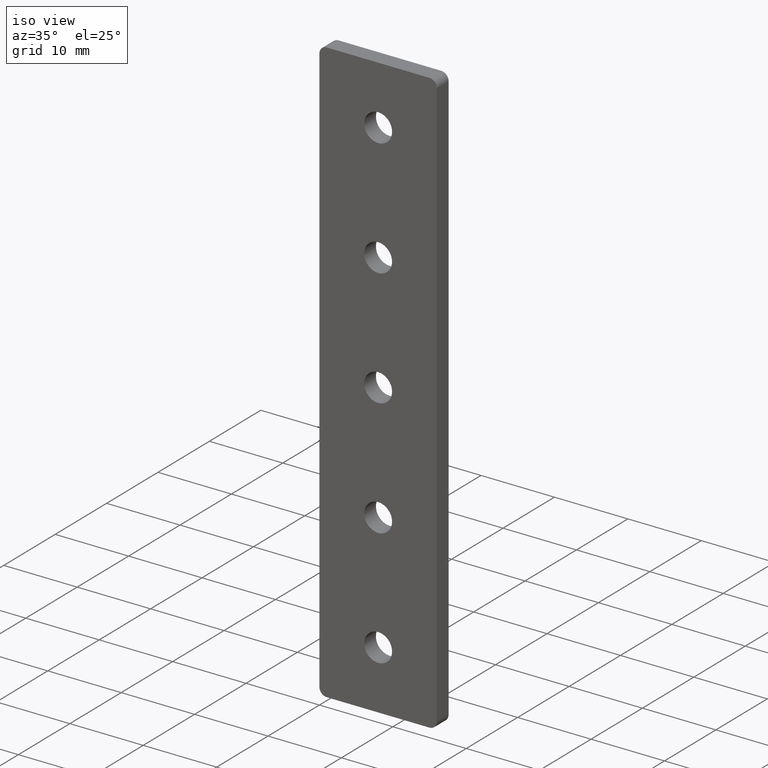
[diagram: clean part render]
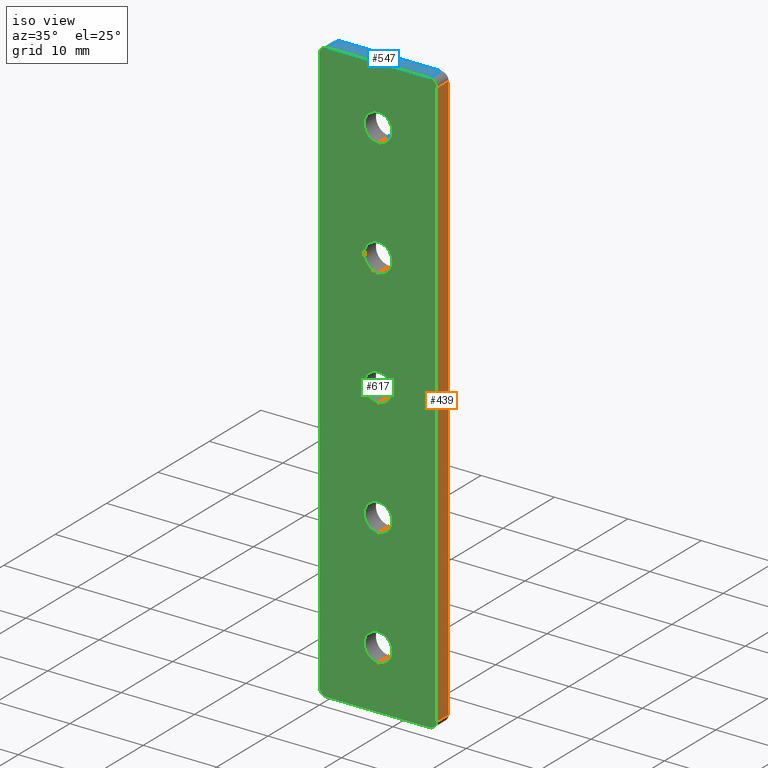
[diagram: same view with three faces highlighted in distinct colors, each labeled with its STEP entity id]
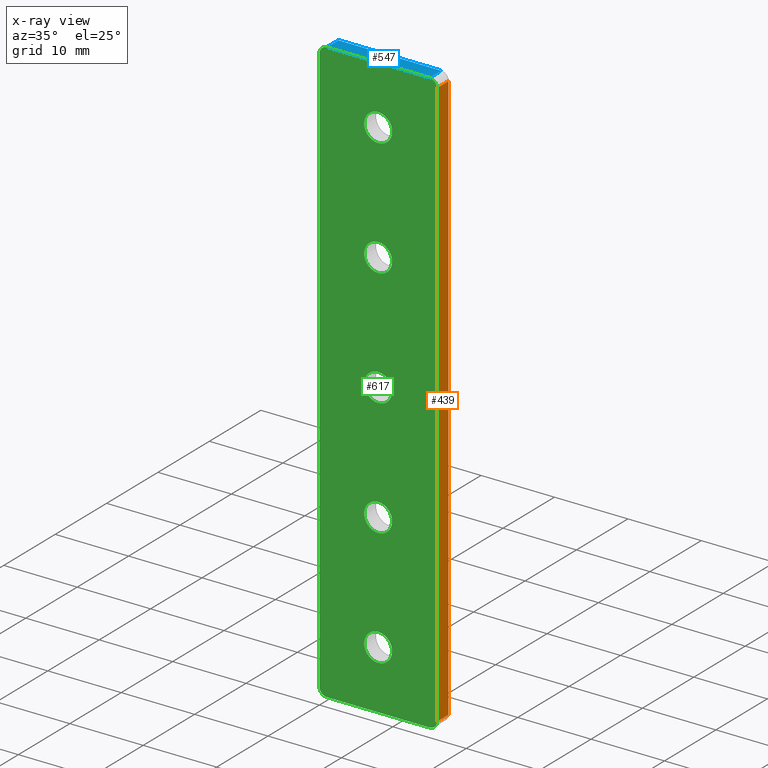
[diagram: x-ray of the same camera — body ghosted, the three highlighted faces saturated]
A machine part, iso view with three faces highlighted in distinct colors.
The next image is the same camera in x-ray (body ghosted, the three faces saturated) — at least one of them is partly hidden behind the body in this view.
Their STEP definitions:

[orange] entity #439 — the highlighted planar face has unit normal (1, 0, 0).
#19 = EDGE_CURVE ( 'NONE', #133, #152, #449, .T. ) ;
#21 = DIRECTION ( 'NONE',  ( 0.0000000000000000000, 0.0000000000000000000, -1.000000000000000000 ) ) ;
#64 = DIRECTION ( 'NONE',  ( 0.0000000000000000000, 0.0000000000000000000, 1.000000000000000000 ) ) ;
#99 = CARTESIAN_POINT ( 'NONE',  ( 16.00000000000000000, 0.0000000000000000000, -79.00000000000000000 ) ) ;
#112 = ORIENTED_EDGE ( 'NONE', *, *, #231, .T. ) ;
#126 = LINE ( 'NONE', #623, #372 ) ;
#133 = VERTEX_POINT ( 'NONE', #99 ) ;
#140 = CARTESIAN_POINT ( 'NONE',  ( 16.00000000000000000, 2.286000000000000000, -79.00000000000000000 ) ) ;
#142 = VECTOR ( 'NONE', #513, 1000.000000000000000 ) ;
#152 = VERTEX_POINT ( 'NONE', #140 ) ;
#181 = CARTESIAN_POINT ( 'NONE',  ( 16.00000000000000000, 2.286000000000000000, 0.0000000000000000000 ) ) ;
#182 = CARTESIAN_POINT ( 'NONE',  ( 16.00000000000000000, 2.286000000000000000, 0.0000000000000000000 ) ) ;
#231 = EDGE_CURVE ( 'NONE', #152, #245, #601, .T. ) ;
#245 = VERTEX_POINT ( 'NONE', #549 ) ;
#272 = VERTEX_POINT ( 'NONE', #382 ) ;
#307 = EDGE_CURVE ( 'NONE', #245, #272, #126, .T. ) ;
#310 = VECTOR ( 'NONE', #690, 1000.000000000000000 ) ;
#367 = FACE_OUTER_BOUND ( 'NONE', #693, .T. ) ;
#372 = VECTOR ( 'NONE', #660, 1000.000000000000000 ) ;
#382 = CARTESIAN_POINT ( 'NONE',  ( 16.00000000000000000, 0.0000000000000000000, -1.000000000000000000 ) ) ;
#412 = VECTOR ( 'NONE', #64, 1000.000000000000000 ) ;
#439 = ADVANCED_FACE ( 'NONE', ( #367 ), #525, .T. ) ;
#449 = LINE ( 'NONE', #676, #310 ) ;
#476 = LINE ( 'NONE', #659, #412 ) ;
#486 = ORIENTED_EDGE ( 'NONE', *, *, #19, .T. ) ;
#513 = DIRECTION ( 'NONE',  ( 0.0000000000000000000, 0.0000000000000000000, 1.000000000000000000 ) ) ;
#525 = PLANE ( 'NONE',  #705 ) ;
#532 = DIRECTION ( 'NONE',  ( 1.000000000000000000, 0.0000000000000000000, 0.0000000000000000000 ) ) ;
#535 = ORIENTED_EDGE ( 'NONE', *, *, #593, .F. ) ;
#549 = CARTESIAN_POINT ( 'NONE',  ( 16.00000000000000000, 2.286000000000000000, -1.000000000000000000 ) ) ;
#593 = EDGE_CURVE ( 'NONE', #133, #272, #476, .T. ) ;
#601 = LINE ( 'NONE', #181, #142 ) ;
#620 = ORIENTED_EDGE ( 'NONE', *, *, #307, .T. ) ;
#623 = CARTESIAN_POINT ( 'NONE',  ( 16.00000000000000000, 2.286000000000000000, -1.000000000000000000 ) ) ;
#659 = CARTESIAN_POINT ( 'NONE',  ( 16.00000000000000000, 0.0000000000000000000, -0.0000000000000000000 ) ) ;
#660 = DIRECTION ( 'NONE',  ( 0.0000000000000000000, -1.000000000000000000, -0.0000000000000000000 ) ) ;
#676 = CARTESIAN_POINT ( 'NONE',  ( 16.00000000000000000, 2.286000000000000000, -79.00000000000000000 ) ) ;
#690 = DIRECTION ( 'NONE',  ( -0.0000000000000000000, 1.000000000000000000, -0.0000000000000000000 ) ) ;
#693 = EDGE_LOOP ( 'NONE', ( #112, #620, #535, #486 ) ) ;
#705 = AXIS2_PLACEMENT_3D ( 'NONE', #182, #532, #21 ) ;

[blue] entity #547 — the highlighted planar face has unit normal (0, -0, 1).
#41 = VECTOR ( 'NONE', #177, 1000.000000000000000 ) ;
#55 = LINE ( 'NONE', #85, #309 ) ;
#60 = CARTESIAN_POINT ( 'NONE',  ( 0.0000000000000000000, 2.286000000000000000, 0.0000000000000000000 ) ) ;
#66 = AXIS2_PLACEMENT_3D ( 'NONE', #60, #268, #436 ) ;
#85 = CARTESIAN_POINT ( 'NONE',  ( 15.00000000000000000, 2.286000000000000000, 0.0000000000000000000 ) ) ;
#105 = CARTESIAN_POINT ( 'NONE',  ( 1.000000000000000000, 0.0000000000000000000, -0.0000000000000000000 ) ) ;
#108 = DIRECTION ( 'NONE',  ( -0.0000000000000000000, 1.000000000000000000, 0.0000000000000000000 ) ) ;
#117 = PLANE ( 'NONE',  #66 ) ;
#125 = VECTOR ( 'NONE', #229, 1000.000000000000000 ) ;
#165 = CARTESIAN_POINT ( 'NONE',  ( 0.0000000000000000000, 0.0000000000000000000, -0.0000000000000000000 ) ) ;
#174 = FACE_OUTER_BOUND ( 'NONE', #343, .T. ) ;
#177 = DIRECTION ( 'NONE',  ( -1.000000000000000000, 0.0000000000000000000, 0.0000000000000000000 ) ) ;
#196 = EDGE_CURVE ( 'NONE', #687, #711, #234, .T. ) ;
#210 = CARTESIAN_POINT ( 'NONE',  ( 15.00000000000000000, 0.0000000000000000000, -0.0000000000000000000 ) ) ;
#227 = CARTESIAN_POINT ( 'NONE',  ( 0.0000000000000000000, 2.286000000000000000, 0.0000000000000000000 ) ) ;
#229 = DIRECTION ( 'NONE',  ( 0.0000000000000000000, -1.000000000000000000, 0.0000000000000000000 ) ) ;
#234 = LINE ( 'NONE', #227, #41 ) ;
#241 = VECTOR ( 'NONE', #671, 1000.000000000000000 ) ;
#253 = LINE ( 'NONE', #165, #241 ) ;
#268 = DIRECTION ( 'NONE',  ( 0.0000000000000000000, -0.0000000000000000000, 1.000000000000000000 ) ) ;
#275 = EDGE_CURVE ( 'NONE', #333, #540, #253, .T. ) ;
#309 = VECTOR ( 'NONE', #108, 1000.000000000000000 ) ;
#326 = ORIENTED_EDGE ( 'NONE', *, *, #661, .T. ) ;
#333 = VERTEX_POINT ( 'NONE', #210 ) ;
#343 = EDGE_LOOP ( 'NONE', ( #657, #498, #577, #326 ) ) ;
#384 = LINE ( 'NONE', #397, #125 ) ;
#397 = CARTESIAN_POINT ( 'NONE',  ( 1.000000000000000000, 2.286000000000000000, 0.0000000000000000000 ) ) ;
#436 = DIRECTION ( 'NONE',  ( 1.000000000000000000, 0.0000000000000000000, -0.0000000000000000000 ) ) ;
#498 = ORIENTED_EDGE ( 'NONE', *, *, #531, .T. ) ;
#531 = EDGE_CURVE ( 'NONE', #333, #687, #55, .T. ) ;
#540 = VERTEX_POINT ( 'NONE', #105 ) ;
#547 = ADVANCED_FACE ( 'NONE', ( #174 ), #117, .T. ) ;
#577 = ORIENTED_EDGE ( 'NONE', *, *, #196, .T. ) ;
#608 = CARTESIAN_POINT ( 'NONE',  ( 15.00000000000000000, 2.286000000000000000, 0.0000000000000000000 ) ) ;
#657 = ORIENTED_EDGE ( 'NONE', *, *, #275, .F. ) ;
#661 = EDGE_CURVE ( 'NONE', #711, #540, #384, .T. ) ;
#671 = DIRECTION ( 'NONE',  ( -1.000000000000000000, 0.0000000000000000000, 0.0000000000000000000 ) ) ;
#680 = CARTESIAN_POINT ( 'NONE',  ( 1.000000000000000000, 2.286000000000000000, 0.0000000000000000000 ) ) ;
#687 = VERTEX_POINT ( 'NONE', #608 ) ;
#711 = VERTEX_POINT ( 'NONE', #680 ) ;

[green] entity #617 — the highlighted planar face has unit normal (0, 1, -0).
#14 = CARTESIAN_POINT ( 'NONE',  ( 8.000000000000000000, 0.0000000000000000000, -55.99999999999999300 ) ) ;
#18 = ORIENTED_EDGE ( 'NONE', *, *, #430, .T. ) ;
#20 = DIRECTION ( 'NONE',  ( 0.0000000000000000000, 0.0000000000000000000, 1.000000000000000000 ) ) ;
#22 = DIRECTION ( 'NONE',  ( 0.0000000000000000000, 0.0000000000000000000, 1.000000000000000000 ) ) ;
#29 = DIRECTION ( 'NONE',  ( 0.0000000000000000000, 1.000000000000000000, -0.0000000000000000000 ) ) ;
#32 = DIRECTION ( 'NONE',  ( 0.0000000000000000000, 1.000000000000000000, -0.0000000000000000000 ) ) ;
#42 = VERTEX_POINT ( 'NONE', #662 ) ;
#45 = CARTESIAN_POINT ( 'NONE',  ( 8.000000000000000000, 0.0000000000000000000, -72.00000000000001400 ) ) ;
#49 = FACE_BOUND ( 'NONE', #249, .T. ) ;
#51 = ORIENTED_EDGE ( 'NONE', *, *, #236, .T. ) ;
#53 = DIRECTION ( 'NONE',  ( -0.0000000000000000000, -1.000000000000000000, 0.0000000000000000000 ) ) ;
#58 = VERTEX_POINT ( 'NONE', #179 ) ;
#61 = CARTESIAN_POINT ( 'NONE',  ( 0.0000000000000000000, 0.0000000000000000000, 0.0000000000000000000 ) ) ;
#64 = DIRECTION ( 'NONE',  ( 0.0000000000000000000, 0.0000000000000000000, 1.000000000000000000 ) ) ;
#70 = DIRECTION ( 'NONE',  ( 0.0000000000000000000, 1.000000000000000000, -0.0000000000000000000 ) ) ;
#75 = CIRCLE ( 'NONE', #169, 1.905000000000000500 ) ;
#77 = DIRECTION ( 'NONE',  ( 0.0000000000000000000, 0.0000000000000000000, 1.000000000000000000 ) ) ;
#80 = CIRCLE ( 'NONE', #478, 1.000000000000000000 ) ;
#82 = EDGE_LOOP ( 'NONE', ( #248, #51 ) ) ;
#93 = CARTESIAN_POINT ( 'NONE',  ( 8.000000000000001800, 0.0000000000000000000, -9.904999999999997600 ) ) ;
#98 = EDGE_CURVE ( 'NONE', #255, #688, #75, .T. ) ;
#99 = CARTESIAN_POINT ( 'NONE',  ( 16.00000000000000000, 0.0000000000000000000, -79.00000000000000000 ) ) ;
#101 = CARTESIAN_POINT ( 'NONE',  ( 8.000000000000000000, 0.0000000000000000000, -70.09499999999999900 ) ) ;
#105 = CARTESIAN_POINT ( 'NONE',  ( 1.000000000000000000, 0.0000000000000000000, -0.0000000000000000000 ) ) ;
#119 = ORIENTED_EDGE ( 'NONE', *, *, #537, .T. ) ;
#122 = VERTEX_POINT ( 'NONE', #101 ) ;
#127 = LINE ( 'NONE', #392, #578 ) ;
#130 = DIRECTION ( 'NONE',  ( 0.0000000000000000000, 1.000000000000000000, -0.0000000000000000000 ) ) ;
#131 = CARTESIAN_POINT ( 'NONE',  ( 8.000000000000000000, 0.0000000000000000000, -55.99999999999999300 ) ) ;
#133 = VERTEX_POINT ( 'NONE', #99 ) ;
#137 = VERTEX_POINT ( 'NONE', #319 ) ;
#138 = AXIS2_PLACEMENT_3D ( 'NONE', #607, #247, #652 ) ;
#139 = DIRECTION ( 'NONE',  ( 0.0000000000000000000, 0.0000000000000000000, 1.000000000000000000 ) ) ;
#145 = CARTESIAN_POINT ( 'NONE',  ( 0.0000000000000000000, 0.0000000000000000000, -1.000000000000000000 ) ) ;
#146 = VERTEX_POINT ( 'NONE', #475 ) ;
#151 = CARTESIAN_POINT ( 'NONE',  ( 8.000000000000001800, 0.0000000000000000000, -7.999999999999996400 ) ) ;
#160 = CARTESIAN_POINT ( 'NONE',  ( 8.000000000000000000, 0.0000000000000000000, -39.99999999999999300 ) ) ;
#163 = ORIENTED_EDGE ( 'NONE', *, *, #473, .T. ) ;
#165 = CARTESIAN_POINT ( 'NONE',  ( 0.0000000000000000000, 0.0000000000000000000, -0.0000000000000000000 ) ) ;
#167 = CARTESIAN_POINT ( 'NONE',  ( 0.0000000000000000000, 0.0000000000000000000, -79.00000000000000000 ) ) ;
#168 = AXIS2_PLACEMENT_3D ( 'NONE', #61, #29, #139 ) ;
#169 = AXIS2_PLACEMENT_3D ( 'NONE', #434, #70, #20 ) ;
#173 = CARTESIAN_POINT ( 'NONE',  ( 8.000000000000000000, 0.0000000000000000000, -54.09499999999999900 ) ) ;
#175 = DIRECTION ( 'NONE',  ( 0.0000000000000000000, 0.0000000000000000000, 1.000000000000000000 ) ) ;
#176 = AXIS2_PLACEMENT_3D ( 'NONE', #45, #704, #359 ) ;
#178 = CIRCLE ( 'NONE', #685, 1.905000000000000500 ) ;
#179 = CARTESIAN_POINT ( 'NONE',  ( 8.000000000000000000, 0.0000000000000000000, -25.90499999999999800 ) ) ;
#183 = VERTEX_POINT ( 'NONE', #173 ) ;
#185 = EDGE_CURVE ( 'NONE', #146, #122, #570, .T. ) ;
#190 = EDGE_CURVE ( 'NONE', #137, #58, #494, .T. ) ;
#192 = DIRECTION ( 'NONE',  ( 0.0000000000000000000, 0.0000000000000000000, 1.000000000000000000 ) ) ;
#203 = CARTESIAN_POINT ( 'NONE',  ( 8.000000000000000000, 0.0000000000000000000, -38.09499999999999900 ) ) ;
#210 = CARTESIAN_POINT ( 'NONE',  ( 15.00000000000000000, 0.0000000000000000000, -0.0000000000000000000 ) ) ;
#215 = DIRECTION ( 'NONE',  ( 0.0000000000000000000, 0.0000000000000000000, -1.000000000000000000 ) ) ;
#217 = DIRECTION ( 'NONE',  ( 0.0000000000000000000, 1.000000000000000000, -0.0000000000000000000 ) ) ;
#219 = VECTOR ( 'NONE', #215, 1000.000000000000000 ) ;
#221 = ORIENTED_EDGE ( 'NONE', *, *, #224, .T. ) ;
#224 = EDGE_CURVE ( 'NONE', #540, #451, #80, .T. ) ;
#225 = CIRCLE ( 'NONE', #352, 1.904999999999996900 ) ;
#230 = DIRECTION ( 'NONE',  ( 0.0000000000000000000, 0.0000000000000000000, 1.000000000000000000 ) ) ;
#236 = EDGE_CURVE ( 'NONE', #183, #42, #429, .T. ) ;
#241 = VECTOR ( 'NONE', #671, 1000.000000000000000 ) ;
#246 = CARTESIAN_POINT ( 'NONE',  ( 1.000000000000000000, 0.0000000000000000000, -1.000000000000000000 ) ) ;
#247 = DIRECTION ( 'NONE',  ( -0.0000000000000000000, -1.000000000000000000, 0.0000000000000000000 ) ) ;
#248 = ORIENTED_EDGE ( 'NONE', *, *, #362, .T. ) ;
#249 = EDGE_LOOP ( 'NONE', ( #625, #655 ) ) ;
#253 = LINE ( 'NONE', #165, #241 ) ;
#255 = VERTEX_POINT ( 'NONE', #341 ) ;
#257 = DIRECTION ( 'NONE',  ( 0.0000000000000000000, 0.0000000000000000000, 1.000000000000000000 ) ) ;
#261 = ORIENTED_EDGE ( 'NONE', *, *, #593, .T. ) ;
#265 = CARTESIAN_POINT ( 'NONE',  ( 15.00000000000000000, 0.0000000000000000000, -80.00000000000000000 ) ) ;
#272 = VERTEX_POINT ( 'NONE', #382 ) ;
#274 = CARTESIAN_POINT ( 'NONE',  ( 8.000000000000000000, 0.0000000000000000000, -23.99999999999999600 ) ) ;
#275 = EDGE_CURVE ( 'NONE', #333, #540, #253, .T. ) ;
#277 = DIRECTION ( 'NONE',  ( 0.0000000000000000000, 0.0000000000000000000, 1.000000000000000000 ) ) ;
#280 = VERTEX_POINT ( 'NONE', #167 ) ;
#283 = AXIS2_PLACEMENT_3D ( 'NONE', #509, #130, #230 ) ;
#284 = EDGE_CURVE ( 'NONE', #272, #333, #542, .T. ) ;
#290 = FACE_BOUND ( 'NONE', #82, .T. ) ;
#292 = VERTEX_POINT ( 'NONE', #708 ) ;
#298 = VERTEX_POINT ( 'NONE', #203 ) ;
#304 = AXIS2_PLACEMENT_3D ( 'NONE', #274, #568, #585 ) ;
#312 = EDGE_LOOP ( 'NONE', ( #369, #694 ) ) ;
#316 = AXIS2_PLACEMENT_3D ( 'NONE', #530, #53, #192 ) ;
#319 = CARTESIAN_POINT ( 'NONE',  ( 8.000000000000000000, 0.0000000000000000000, -22.09499999999999500 ) ) ;
#324 = FACE_BOUND ( 'NONE', #510, .T. ) ;
#332 = EDGE_CURVE ( 'NONE', #280, #576, #354, .T. ) ;
#333 = VERTEX_POINT ( 'NONE', #210 ) ;
#336 = DIRECTION ( 'NONE',  ( 0.0000000000000000000, 1.000000000000000000, -0.0000000000000000000 ) ) ;
#338 = CARTESIAN_POINT ( 'NONE',  ( 8.000000000000000000, 0.0000000000000000000, -39.99999999999999300 ) ) ;
#341 = CARTESIAN_POINT ( 'NONE',  ( 8.000000000000001800, 0.0000000000000000000, -6.094999999999996200 ) ) ;
#344 = ORIENTED_EDGE ( 'NONE', *, *, #465, .T. ) ;
#352 = AXIS2_PLACEMENT_3D ( 'NONE', #131, #32, #691 ) ;
#354 = CIRCLE ( 'NONE', #388, 1.000000000000000900 ) ;
#356 = CARTESIAN_POINT ( 'NONE',  ( 8.000000000000000000, 0.0000000000000000000, -23.99999999999999600 ) ) ;
#358 = AXIS2_PLACEMENT_3D ( 'NONE', #160, #466, #376 ) ;
#359 = DIRECTION ( 'NONE',  ( 0.0000000000000000000, 0.0000000000000000000, 1.000000000000000000 ) ) ;
#362 = EDGE_CURVE ( 'NONE', #42, #183, #225, .T. ) ;
#369 = ORIENTED_EDGE ( 'NONE', *, *, #185, .T. ) ;
#376 = DIRECTION ( 'NONE',  ( 0.0000000000000000000, 0.0000000000000000000, 1.000000000000000000 ) ) ;
#380 = CIRCLE ( 'NONE', #316, 1.000000000000000900 ) ;
#382 = CARTESIAN_POINT ( 'NONE',  ( 16.00000000000000000, 0.0000000000000000000, -1.000000000000000000 ) ) ;
#388 = AXIS2_PLACEMENT_3D ( 'NONE', #695, #515, #175 ) ;
#392 = CARTESIAN_POINT ( 'NONE',  ( 0.0000000000000000000, 0.0000000000000000000, -80.00000000000000000 ) ) ;
#400 = AXIS2_PLACEMENT_3D ( 'NONE', #14, #612, #22 ) ;
#407 = CIRCLE ( 'NONE', #176, 1.905000000000003800 ) ;
#408 = ORIENTED_EDGE ( 'NONE', *, *, #332, .T. ) ;
#412 = VECTOR ( 'NONE', #64, 1000.000000000000000 ) ;
#417 = ORIENTED_EDGE ( 'NONE', *, *, #98, .T. ) ;
#429 = CIRCLE ( 'NONE', #400, 1.904999999999996900 ) ;
#430 = EDGE_CURVE ( 'NONE', #298, #292, #485, .T. ) ;
#431 = EDGE_LOOP ( 'NONE', ( #261, #647, #545, #221, #521, #408, #565, #163 ) ) ;
#434 = CARTESIAN_POINT ( 'NONE',  ( 8.000000000000001800, 0.0000000000000000000, -7.999999999999996400 ) ) ;
#435 = DIRECTION ( 'NONE',  ( 1.000000000000000000, -0.0000000000000000000, 0.0000000000000000000 ) ) ;
#451 = VERTEX_POINT ( 'NONE', #145 ) ;
#454 = PLANE ( 'NONE',  #168 ) ;
#458 = FACE_BOUND ( 'NONE', #312, .T. ) ;
#461 = AXIS2_PLACEMENT_3D ( 'NONE', #338, #217, #490 ) ;
#465 = EDGE_CURVE ( 'NONE', #688, #255, #178, .T. ) ;
#466 = DIRECTION ( 'NONE',  ( 0.0000000000000000000, 1.000000000000000000, -0.0000000000000000000 ) ) ;
#473 = EDGE_CURVE ( 'NONE', #574, #133, #380, .T. ) ;
#475 = CARTESIAN_POINT ( 'NONE',  ( 8.000000000000000000, 0.0000000000000000000, -73.90500000000001500 ) ) ;
#476 = LINE ( 'NONE', #659, #412 ) ;
#478 = AXIS2_PLACEMENT_3D ( 'NONE', #246, #569, #277 ) ;
#485 = CIRCLE ( 'NONE', #358, 1.904999999999996900 ) ;
#489 = EDGE_CURVE ( 'NONE', #451, #280, #654, .T. ) ;
#490 = DIRECTION ( 'NONE',  ( 0.0000000000000000000, 0.0000000000000000000, 1.000000000000000000 ) ) ;
#494 = CIRCLE ( 'NONE', #304, 1.905000000000000500 ) ;
#496 = DIRECTION ( 'NONE',  ( 0.0000000000000000000, 1.000000000000000000, -0.0000000000000000000 ) ) ;
#508 = CIRCLE ( 'NONE', #529, 1.905000000000000500 ) ;
#509 = CARTESIAN_POINT ( 'NONE',  ( 8.000000000000000000, 0.0000000000000000000, -72.00000000000001400 ) ) ;
#510 = EDGE_LOOP ( 'NONE', ( #344, #417 ) ) ;
#515 = DIRECTION ( 'NONE',  ( -0.0000000000000000000, -1.000000000000000000, 0.0000000000000000000 ) ) ;
#521 = ORIENTED_EDGE ( 'NONE', *, *, #489, .T. ) ;
#526 = CARTESIAN_POINT ( 'NONE',  ( 0.0000000000000000000, 0.0000000000000000000, 0.0000000000000000000 ) ) ;
#529 = AXIS2_PLACEMENT_3D ( 'NONE', #356, #336, #257 ) ;
#530 = CARTESIAN_POINT ( 'NONE',  ( 15.00000000000000000, 0.0000000000000000000, -79.00000000000000000 ) ) ;
#537 = EDGE_CURVE ( 'NONE', #292, #298, #640, .T. ) ;
#540 = VERTEX_POINT ( 'NONE', #105 ) ;
#542 = CIRCLE ( 'NONE', #138, 1.000000000000000000 ) ;
#545 = ORIENTED_EDGE ( 'NONE', *, *, #275, .T. ) ;
#565 = ORIENTED_EDGE ( 'NONE', *, *, #599, .T. ) ;
#568 = DIRECTION ( 'NONE',  ( 0.0000000000000000000, 1.000000000000000000, -0.0000000000000000000 ) ) ;
#569 = DIRECTION ( 'NONE',  ( -0.0000000000000000000, -1.000000000000000000, 0.0000000000000000000 ) ) ;
#570 = CIRCLE ( 'NONE', #283, 1.905000000000003800 ) ;
#574 = VERTEX_POINT ( 'NONE', #265 ) ;
#576 = VERTEX_POINT ( 'NONE', #675 ) ;
#578 = VECTOR ( 'NONE', #435, 1000.000000000000000 ) ;
#585 = DIRECTION ( 'NONE',  ( 0.0000000000000000000, 0.0000000000000000000, 1.000000000000000000 ) ) ;
#589 = FACE_BOUND ( 'NONE', #650, .T. ) ;
#593 = EDGE_CURVE ( 'NONE', #133, #272, #476, .T. ) ;
#599 = EDGE_CURVE ( 'NONE', #576, #574, #127, .T. ) ;
#607 = CARTESIAN_POINT ( 'NONE',  ( 15.00000000000000000, 0.0000000000000000000, -1.000000000000000000 ) ) ;
#612 = DIRECTION ( 'NONE',  ( 0.0000000000000000000, 1.000000000000000000, -0.0000000000000000000 ) ) ;
#617 = ADVANCED_FACE ( 'NONE', ( #290, #589, #458, #49, #324, #634 ), #454, .F. ) ;
#625 = ORIENTED_EDGE ( 'NONE', *, *, #658, .T. ) ;
#634 = FACE_OUTER_BOUND ( 'NONE', #431, .T. ) ;
#640 = CIRCLE ( 'NONE', #461, 1.904999999999996900 ) ;
#647 = ORIENTED_EDGE ( 'NONE', *, *, #284, .T. ) ;
#649 = EDGE_CURVE ( 'NONE', #122, #146, #407, .T. ) ;
#650 = EDGE_LOOP ( 'NONE', ( #119, #18 ) ) ;
#652 = DIRECTION ( 'NONE',  ( 0.0000000000000000000, 0.0000000000000000000, 1.000000000000000000 ) ) ;
#654 = LINE ( 'NONE', #526, #219 ) ;
#655 = ORIENTED_EDGE ( 'NONE', *, *, #190, .T. ) ;
#658 = EDGE_CURVE ( 'NONE', #58, #137, #508, .T. ) ;
#659 = CARTESIAN_POINT ( 'NONE',  ( 16.00000000000000000, 0.0000000000000000000, -0.0000000000000000000 ) ) ;
#662 = CARTESIAN_POINT ( 'NONE',  ( 8.000000000000000000, 0.0000000000000000000, -57.90499999999999400 ) ) ;
#671 = DIRECTION ( 'NONE',  ( -1.000000000000000000, 0.0000000000000000000, 0.0000000000000000000 ) ) ;
#675 = CARTESIAN_POINT ( 'NONE',  ( 1.000000000000000000, 0.0000000000000000000, -80.00000000000000000 ) ) ;
#685 = AXIS2_PLACEMENT_3D ( 'NONE', #151, #496, #77 ) ;
#688 = VERTEX_POINT ( 'NONE', #93 ) ;
#691 = DIRECTION ( 'NONE',  ( 0.0000000000000000000, 0.0000000000000000000, 1.000000000000000000 ) ) ;
#694 = ORIENTED_EDGE ( 'NONE', *, *, #649, .T. ) ;
#695 = CARTESIAN_POINT ( 'NONE',  ( 1.000000000000000000, 0.0000000000000000000, -79.00000000000000000 ) ) ;
#704 = DIRECTION ( 'NONE',  ( 0.0000000000000000000, 1.000000000000000000, -0.0000000000000000000 ) ) ;
#708 = CARTESIAN_POINT ( 'NONE',  ( 8.000000000000000000, 0.0000000000000000000, -41.90499999999999400 ) ) ;